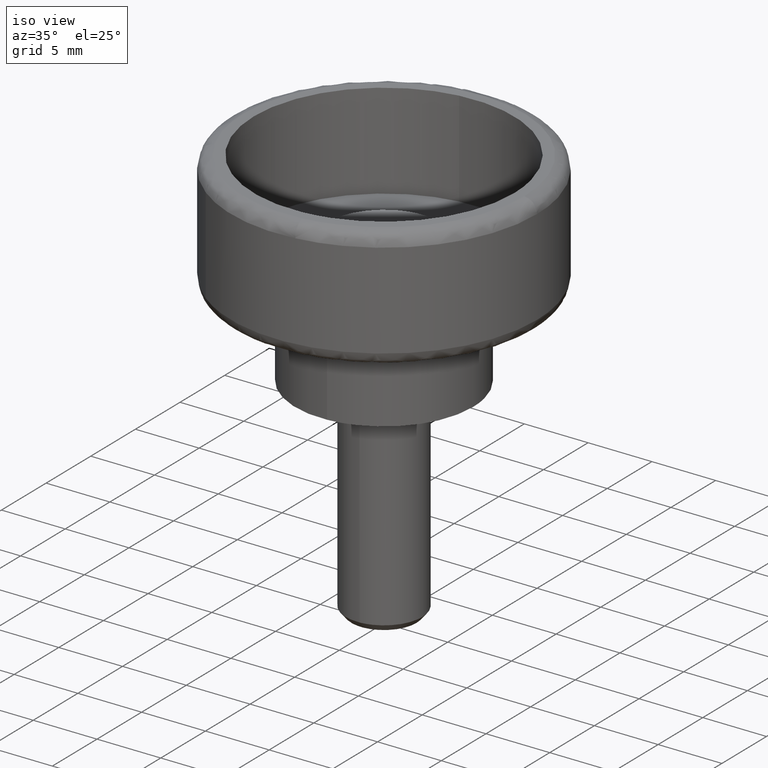
[diagram: clean part render]
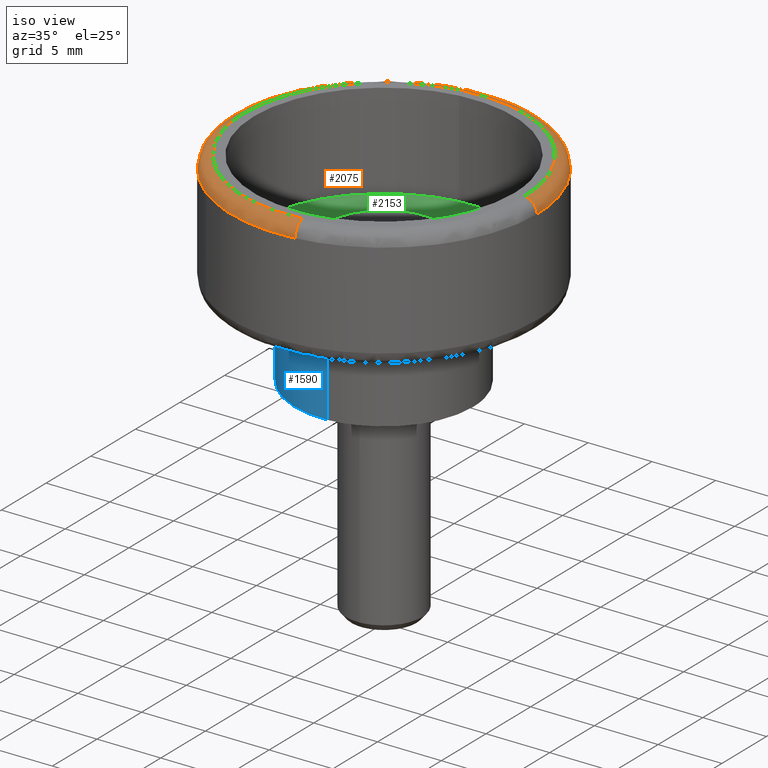
[diagram: same view with three faces highlighted in distinct colors, each labeled with its STEP entity id]
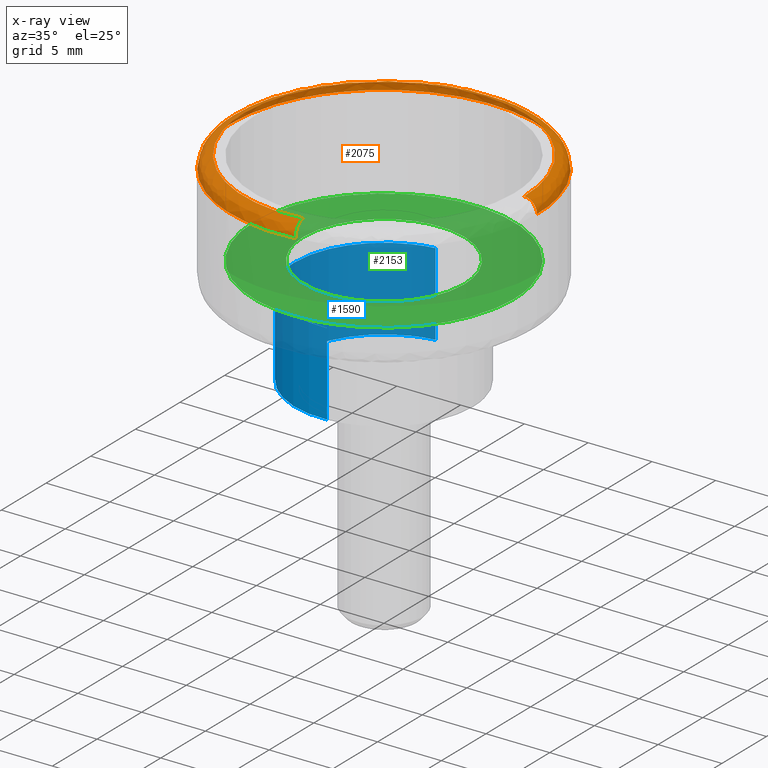
[diagram: x-ray of the same camera — body ghosted, the three highlighted faces saturated]
A machine part, iso view with three faces highlighted in distinct colors.
The next image is the same camera in x-ray (body ghosted, the three faces saturated) — at least one of them is partly hidden behind the body in this view.
Their STEP definitions:

[orange] entity #2075 — the highlighted face is a freeform B-spline surface patch.
#1630=CARTESIAN_POINT('',(-9.086860358384573,7.837663480095175,15.500000000000000));
#1631=VERTEX_POINT('',#1630);
#1637=CARTESIAN_POINT('',(12.0,9.606894E-018,15.500000000126580));
#1638=VERTEX_POINT('',#1637);
#1639=CARTESIAN_POINT('',(-9.086860358384573,7.837663480095175,15.499999999999998));
#1640=CARTESIAN_POINT('',(-5.496732234117525,12.000000000000004,15.500000000000000));
#1641=CARTESIAN_POINT('',(0.0,12.0,15.500000000000000));
#1642=CARTESIAN_POINT('',(12.0,12.0,15.500000000000004));
#1643=CARTESIAN_POINT('',(12.0,9.606894E-018,15.500000000126580));
#1651=(BOUNDED_CURVE()B_SPLINE_CURVE(2,(#1639,#1640,#1641,#1642,#1643),.UNSPECIFIED.,.F.,.U.)B_SPLINE_CURVE_WITH_KNOTS((3,2,3),(0.113878078103211,0.250000000000000,0.500000000000000),.UNSPECIFIED.)CURVE()GEOMETRIC_REPRESENTATION_ITEM()RATIONAL_B_SPLINE_CURVE((0.854712752367630,0.840523248578304,1.0,0.707106781186548,1.0))REPRESENTATION_ITEM(''));
#1652=EDGE_CURVE('',#1631,#1638,#1651,.T.);
#1654=CARTESIAN_POINT('',(1.385570751932019,-11.919739665420151,15.500000000125951));
#1655=VERTEX_POINT('',#1654);
#1669=CARTESIAN_POINT('',(-7.305136842351880,-9.520240318107154,15.500000000000000));
#1670=VERTEX_POINT('',#1669);
#1671=CARTESIAN_POINT('',(1.385570751932019,-11.919739665420147,15.500000000125949));
#1672=CARTESIAN_POINT('',(0.695109949181728,-12.000000000000002,15.499999999999996));
#1673=CARTESIAN_POINT('',(0.0,-12.0,15.500000000000000));
#1674=CARTESIAN_POINT('',(-4.073450676559038,-12.000000000000005,15.499999999999996));
#1675=CARTESIAN_POINT('',(-7.305136842351880,-9.520240318107154,15.500000000000002));
#1683=(BOUNDED_CURVE()B_SPLINE_CURVE(2,(#1671,#1672,#1673,#1674,#1675),.UNSPECIFIED.,.F.,.U.)B_SPLINE_CURVE_WITH_KNOTS((3,2,3),(0.729999999999798,0.750000000000000,0.855220500659799),.UNSPECIFIED.)CURVE()GEOMETRIC_REPRESENTATION_ITEM()RATIONAL_B_SPLINE_CURVE((0.956886118190261,0.976568542494687,1.0,0.876726515506354,0.857220213064703))REPRESENTATION_ITEM(''));
#1684=EDGE_CURVE('',#1655,#1670,#1683,.T.);
#1790=CARTESIAN_POINT('',(-12.0,0.0,15.500000000000000));
#1791=VERTEX_POINT('',#1790);
#1792=CARTESIAN_POINT('',(-7.305136842351879,-9.520240318107154,15.500000000000000));
#1793=CARTESIAN_POINT('',(-12.0,-5.917745591493209,15.499999999999996));
#1794=CARTESIAN_POINT('',(-12.0,0.0,15.500000000000000));
#1802=(BOUNDED_CURVE()B_SPLINE_CURVE(2,(#1792,#1793,#1794),.UNSPECIFIED.,.F.,.U.)B_SPLINE_CURVE_WITH_KNOTS((3,3),(0.855220500659800,1.0),.UNSPECIFIED.)CURVE()GEOMETRIC_REPRESENTATION_ITEM()RATIONAL_B_SPLINE_CURVE((0.857220213064703,0.830380265680195,1.0))REPRESENTATION_ITEM(''));
#1803=EDGE_CURVE('',#1670,#1791,#1802,.T.);
#1805=CARTESIAN_POINT('',(-12.0,0.0,15.500000000000000));
#1806=CARTESIAN_POINT('',(-12.000000000000007,4.460216464787531,15.500000000000004));
#1807=CARTESIAN_POINT('',(-9.086860358384573,7.837663480095175,15.499999999999998));
#1815=(BOUNDED_CURVE()B_SPLINE_CURVE(2,(#1805,#1806,#1807),.UNSPECIFIED.,.F.,.U.)B_SPLINE_CURVE_WITH_KNOTS((3,3),(0.0,0.113878078103211),.UNSPECIFIED.)CURVE()GEOMETRIC_REPRESENTATION_ITEM()RATIONAL_B_SPLINE_CURVE((1.0,0.866583532608244,0.854712752367630))REPRESENTATION_ITEM(''));
#1816=EDGE_CURVE('',#1791,#1631,#1815,.T.);
#1972=CARTESIAN_POINT('',(1.262097760555878,-10.857541202690685,16.497592334182070));
#1973=CARTESIAN_POINT('',(0.633166298613326,-10.930649190479311,16.497592334182073));
#1974=CARTESIAN_POINT('',(1.338574E-015,-10.930649190479308,16.497592334182070));
#1975=CARTESIAN_POINT('',(-10.930649190479309,-10.930649190479311,16.497592334182070));
#1976=CARTESIAN_POINT('',(-10.930649190479308,-2.007861E-015,16.497592334182070));
#1977=CARTESIAN_POINT('',(-10.930649190479315,10.930649190479309,16.497592334182070));
#1978=CARTESIAN_POINT('',(-2.677148E-015,10.930649190479308,16.497592334182070));
#1979=CARTESIAN_POINT('',(10.930649190479309,10.930649190479315,16.497592334182070));
#1980=CARTESIAN_POINT('',(10.930649190479308,3.346436E-015,16.497592334182070));
#1981=CARTESIAN_POINT('',(1.394545507994647,-11.996959178035647,16.577335958139578));
#1982=CARTESIAN_POINT('',(0.699612379595628,-12.077739303914532,16.577335958139578));
#1983=CARTESIAN_POINT('',(1.479048E-015,-12.077739303914530,16.577335958139575));
#1984=CARTESIAN_POINT('',(-12.077739303914527,-12.077739303914532,16.577335958139582));
#1985=CARTESIAN_POINT('',(-12.077739303914530,-2.218571E-015,16.577335958139575));
#1986=CARTESIAN_POINT('',(-12.077739303914532,12.077739303914527,16.577335958139582));
#1987=CARTESIAN_POINT('',(-2.958095E-015,12.077739303914530,16.577335958139575));
#1988=CARTESIAN_POINT('',(12.077739303914527,12.077739303914532,16.577335958139582));
#1989=CARTESIAN_POINT('',(12.077739303914530,3.697619E-015,16.577335958139575));
#1990=CARTESIAN_POINT('',(1.385288403415984,-11.917322403831911,15.430275774839700));
#1991=CARTESIAN_POINT('',(0.694968296684518,-11.997566304776679,15.430275774839703));
#1992=CARTESIAN_POINT('',(1.469230E-015,-11.997566304776678,15.430275774839700));
#1993=CARTESIAN_POINT('',(-11.997566304776672,-11.997566304776676,15.430275774839705));
#1994=CARTESIAN_POINT('',(-11.997566304776678,-2.203844E-015,15.430275774839700));
#1995=CARTESIAN_POINT('',(-11.997566304776676,11.997566304776671,15.430275774839705));
#1996=CARTESIAN_POINT('',(-2.938459E-015,11.997566304776678,15.430275774839700));
#1997=CARTESIAN_POINT('',(11.997566304776671,11.997566304776678,15.430275774839705));
#1998=CARTESIAN_POINT('',(11.997566304776678,3.673074E-015,15.430275774839700));
#2006=(BOUNDED_SURFACE()B_SPLINE_SURFACE(2,2,((#1972,#1981,#1990),(#1973,#1982,#1991),(#1974,#1983,#1992),(#1975,#1984,#1993),(#1976,#1985,#1994),(#1977,#1986,#1995),(#1978,#1987,#1996),(#1979,#1988,#1997),(#1980,#1989,#1998)),.UNSPECIFIED.,.F.,.F.,.U.)B_SPLINE_SURFACE_WITH_KNOTS((3,2,2,2,3),(3,3),(0.0,1.590255980663134,21.468474696298959,41.346693411934787,61.224912127570612),(0.0,1.822370659225236),.UNSPECIFIED.)GEOMETRIC_REPRESENTATION_ITEM()RATIONAL_B_SPLINE_SURFACE(((0.876475874065725,0.573569883320356,0.871620861004611),(0.894504305791055,0.585367772785560,0.889549428861364),(0.915966720612989,0.599412876740432,0.910892958147065),(0.647686279486648,0.423848909873695,0.644098587640864),(0.915966720612989,0.599412876740432,0.910892958147065),(0.647686279486648,0.423848909873695,0.644098587640864),(0.915966720612989,0.599412876740432,0.910892958147065),(0.647686279486648,0.423848909873695,0.644098587640864),(0.915966720612989,0.599412876740432,0.910892958147065)))REPRESENTATION_ITEM('')SURFACE());
#2007=ORIENTED_EDGE('',*,*,#1803,.F.);
#2008=ORIENTED_EDGE('',*,*,#1684,.F.);
#2009=CARTESIAN_POINT('',(1.270106522710412,-10.926428027348861,16.500000000000000));
#2010=VERTEX_POINT('',#2009);
#2011=CARTESIAN_POINT('',(1.270106522710412,-10.926428027348855,16.500000000000004));
#2012=CARTESIAN_POINT('',(1.385570751895803,-11.919739665170766,16.499999998557623));
#2013=CARTESIAN_POINT('',(1.385570751932018,-11.919739665420147,15.500000000125951));
#2021=(BOUNDED_CURVE()B_SPLINE_CURVE(2,(#2011,#2012,#2013),.UNSPECIFIED.,.F.,.U.)B_SPLINE_CURVE_WITH_KNOTS((3,3),(-1.736413119579362,-0.276558718274582),.UNSPECIFIED.)CURVE()GEOMETRIC_REPRESENTATION_ITEM()RATIONAL_B_SPLINE_CURVE((0.850203275787383,0.599621899510506,0.845789311810019))REPRESENTATION_ITEM(''));
#2022=EDGE_CURVE('',#2010,#1655,#2021,.T.);
#2023=ORIENTED_EDGE('',*,*,#2022,.F.);
#2024=CARTESIAN_POINT('',(-11.0,0.0,16.500000000000000));
#2025=VERTEX_POINT('',#2024);
#2026=CARTESIAN_POINT('',(1.270106522710412,-10.926428027348859,16.500000000000004));
#2027=CARTESIAN_POINT('',(0.637184120106272,-11.0,16.500000000000004));
#2028=CARTESIAN_POINT('',(0.0,-11.0,16.500000000000000));
#2029=CARTESIAN_POINT('',(-11.0,-11.0,16.499999999999993));
#2030=CARTESIAN_POINT('',(-11.0,0.0,16.500000000000000));
#2038=(BOUNDED_CURVE()B_SPLINE_CURVE(2,(#2026,#2027,#2028,#2029,#2030),.UNSPECIFIED.,.F.,.U.)B_SPLINE_CURVE_WITH_KNOTS((3,2,3),(0.729999999999092,0.750000000000000,1.0),.UNSPECIFIED.)CURVE()GEOMETRIC_REPRESENTATION_ITEM()RATIONAL_B_SPLINE_CURVE((0.956886118188873,0.976568542493860,1.0,0.707106781186548,1.0))REPRESENTATION_ITEM(''));
#2039=EDGE_CURVE('',#2010,#2025,#2038,.T.);
#2040=ORIENTED_EDGE('',*,*,#2039,.T.);
#2041=CARTESIAN_POINT('',(11.000000000028390,1.883752E-016,16.500000000000000));
#2042=VERTEX_POINT('',#2041);
#2043=CARTESIAN_POINT('',(-11.0,0.0,16.500000000000000));
#2044=CARTESIAN_POINT('',(-11.0,11.0,16.499999999999993));
#2045=CARTESIAN_POINT('',(0.0,11.0,16.500000000000000));
#2046=CARTESIAN_POINT('',(11.0,11.0,16.499999999999993));
#2047=CARTESIAN_POINT('',(11.000000000028390,1.883752E-016,16.500000000000000));
#2055=(BOUNDED_CURVE()B_SPLINE_CURVE(2,(#2043,#2044,#2045,#2046,#2047),.UNSPECIFIED.,.F.,.U.)B_SPLINE_CURVE_WITH_KNOTS((3,2,3),(0.0,0.250000000000000,0.500000000000000),.UNSPECIFIED.)CURVE()GEOMETRIC_REPRESENTATION_ITEM()RATIONAL_B_SPLINE_CURVE((1.0,0.707106781186548,1.0,0.707106781186548,1.0))REPRESENTATION_ITEM(''));
#2056=EDGE_CURVE('',#2025,#2042,#2055,.T.);
#2057=ORIENTED_EDGE('',*,*,#2056,.T.);
#2058=CARTESIAN_POINT('',(11.000000000028386,1.883752E-016,16.500000000000000));
#2059=CARTESIAN_POINT('',(11.999999999746843,1.701623E-016,16.499999999886455));
#2060=CARTESIAN_POINT('',(11.999999999999996,9.606894E-018,15.500000000126576));
#2068=(BOUNDED_CURVE()B_SPLINE_CURVE(2,(#2058,#2059,#2060),.UNSPECIFIED.,.F.,.U.)B_SPLINE_CURVE_WITH_KNOTS((3,3),(-1.736413120954656,-0.276558718275875),.UNSPECIFIED.)CURVE()GEOMETRIC_REPRESENTATION_ITEM()RATIONAL_B_SPLINE_CURVE((0.888510409020390,0.626638727305003,0.883897567046802))REPRESENTATION_ITEM(''));
#2069=EDGE_CURVE('',#2042,#1638,#2068,.T.);
#2070=ORIENTED_EDGE('',*,*,#2069,.T.);
#2071=ORIENTED_EDGE('',*,*,#1652,.F.);
#2072=ORIENTED_EDGE('',*,*,#1816,.F.);
#2073=EDGE_LOOP('',(#2007,#2008,#2023,#2040,#2057,#2070,#2071,#2072));
#2074=FACE_OUTER_BOUND('',#2073,.T.);
#2075=ADVANCED_FACE('',(#2074),#2006,.T.);

[blue] entity #1590 — the highlighted face is a freeform B-spline surface patch.
#1427=CARTESIAN_POINT('',(-0.826236553502768,6.951067051729984,0.499999999999943));
#1428=VERTEX_POINT('',#1427);
#1446=CARTESIAN_POINT('',(-0.826236591573565,6.951067047204727,7.0));
#1447=VERTEX_POINT('',#1446);
#1448=CARTESIAN_POINT('',(-0.826236591573565,6.951067047204727,7.0));
#1449=CARTESIAN_POINT('',(-0.826236553502768,6.951067051729984,0.499999999999943));
#1450=QUASI_UNIFORM_CURVE('',1,(#1448,#1449),.UNSPECIFIED.,.F.,.U.);
#1451=EDGE_CURVE('',#1447,#1428,#1450,.T.);
#1470=CARTESIAN_POINT('',(0.427335286150465,-6.986943863606637,7.0));
#1471=VERTEX_POINT('',#1470);
#1485=CARTESIAN_POINT('',(0.427335229989776,-6.986943867041500,0.499999999999905));
#1486=VERTEX_POINT('',#1485);
#1487=CARTESIAN_POINT('',(0.427335286150465,-6.986943863606637,7.0));
#1488=CARTESIAN_POINT('',(0.427335229989776,-6.986943867041500,0.499999999999905));
#1489=QUASI_UNIFORM_CURVE('',1,(#1487,#1488),.UNSPECIFIED.,.F.,.U.);
#1490=EDGE_CURVE('',#1471,#1486,#1489,.T.);
#1508=CARTESIAN_POINT('',(0.427339776743999,-6.986943588953067,7.162500000000003));
#1509=CARTESIAN_POINT('',(-6.559603812209068,-7.414283365697066,7.162500000000005));
#1510=CARTESIAN_POINT('',(-6.986943588953067,-0.427339776743999,7.162500000000003));
#1511=CARTESIAN_POINT('',(-7.390503377127691,6.170804435876506,7.162500000000002));
#1512=CARTESIAN_POINT('',(-0.826239642597309,6.951066684545665,7.162500000000005));
#1513=CARTESIAN_POINT('',(0.427339776743999,-6.986943588953067,0.333437499999927));
#1514=CARTESIAN_POINT('',(-6.559603812209068,-7.414283365697066,0.333437499999927));
#1515=CARTESIAN_POINT('',(-6.986943588953067,-0.427339776743999,0.333437499999927));
#1516=CARTESIAN_POINT('',(-7.390503377127691,6.170804435876506,0.333437499999927));
#1517=CARTESIAN_POINT('',(-0.826239642597309,6.951066684545665,0.333437499999927));
#1525=(BOUNDED_SURFACE()B_SPLINE_SURFACE(2,1,((#1508,#1513),(#1509,#1514),(#1510,#1515),(#1511,#1516),(#1512,#1517)),.UNSPECIFIED.,.F.,.F.,.U.)B_SPLINE_SURFACE_WITH_KNOTS((3,2,3),(2,2),(0.0,11.597979746446660,22.732040303035451),(0.0,6.829062500000078),.UNSPECIFIED.)GEOMETRIC_REPRESENTATION_ITEM()RATIONAL_B_SPLINE_SURFACE(((1.0,1.0),(0.707106781186548,0.707106781186548),(1.0,1.0),(0.718822509939086,0.718822509939086),(0.977505800795127,0.977505800795127)))REPRESENTATION_ITEM('')SURFACE());
#1526=CARTESIAN_POINT('',(-7.0,0.0,0.499999999999929));
#1527=VERTEX_POINT('',#1526);
#1528=CARTESIAN_POINT('',(-7.0,0.0,0.499999999999929));
#1529=CARTESIAN_POINT('',(-7.0,6.217224464079954,0.499999999999929));
#1530=CARTESIAN_POINT('',(-0.826236553502768,6.951067051729984,0.499999999999943));
#1538=(BOUNDED_CURVE()B_SPLINE_CURVE(2,(#1528,#1529,#1530),.UNSPECIFIED.,.F.,.U.)B_SPLINE_CURVE_WITH_KNOTS((3,3),(0.0,0.229562548621675),.UNSPECIFIED.)CURVE()GEOMETRIC_REPRESENTATION_ITEM()RATIONAL_B_SPLINE_CURVE((1.0,0.731050744860711,0.956026901398833))REPRESENTATION_ITEM(''));
#1539=EDGE_CURVE('',#1527,#1428,#1538,.T.);
#1540=ORIENTED_EDGE('',*,*,#1539,.F.);
#1541=CARTESIAN_POINT('',(0.427335229989776,-6.986943867041500,0.499999999999905));
#1542=CARTESIAN_POINT('',(0.213867063338795,-7.0,0.499999999999929));
#1543=CARTESIAN_POINT('',(0.0,-7.0,0.499999999999929));
#1544=CARTESIAN_POINT('',(-6.999999999999999,-6.999999999999999,0.499999999999929));
#1545=CARTESIAN_POINT('',(-7.0,0.0,0.499999999999929));
#1553=(BOUNDED_CURVE()B_SPLINE_CURVE(2,(#1541,#1542,#1543,#1544,#1545),.UNSPECIFIED.,.F.,.U.)B_SPLINE_CURVE_WITH_KNOTS((3,2,3),(0.739333074526818,0.750000000000000,1.0),.UNSPECIFIED.)CURVE()GEOMETRIC_REPRESENTATION_ITEM()RATIONAL_B_SPLINE_CURVE((0.976072282321127,0.987502919453266,1.0,0.707106781186547,1.0))REPRESENTATION_ITEM(''));
#1554=EDGE_CURVE('',#1486,#1527,#1553,.T.);
#1555=ORIENTED_EDGE('',*,*,#1554,.F.);
#1556=ORIENTED_EDGE('',*,*,#1490,.F.);
#1557=CARTESIAN_POINT('',(-7.0,0.0,7.0));
#1558=VERTEX_POINT('',#1557);
#1559=CARTESIAN_POINT('',(0.427335286150465,-6.986943863606637,7.0));
#1560=CARTESIAN_POINT('',(0.213867091497872,-7.0,7.0));
#1561=CARTESIAN_POINT('',(0.0,-7.0,7.0));
#1562=CARTESIAN_POINT('',(-6.999999999999999,-6.999999999999999,6.999999999999999));
#1563=CARTESIAN_POINT('',(-7.0,0.0,7.0));
#1571=(BOUNDED_CURVE()B_SPLINE_CURVE(2,(#1559,#1560,#1561,#1562,#1563),.UNSPECIFIED.,.F.,.U.)B_SPLINE_CURVE_WITH_KNOTS((3,2,3),(0.739333073139896,0.750000000000000,1.0),.UNSPECIFIED.)CURVE()GEOMETRIC_REPRESENTATION_ITEM()RATIONAL_B_SPLINE_CURVE((0.976072279348686,0.987502917828386,1.0,0.707106781186547,1.0))REPRESENTATION_ITEM(''));
#1572=EDGE_CURVE('',#1471,#1558,#1571,.T.);
#1573=ORIENTED_EDGE('',*,*,#1572,.T.);
#1574=CARTESIAN_POINT('',(-7.0,0.0,7.0));
#1575=CARTESIAN_POINT('',(-7.0,6.217224429788684,7.0));
#1576=CARTESIAN_POINT('',(-0.826236591573565,6.951067047204728,7.0));
#1584=(BOUNDED_CURVE()B_SPLINE_CURVE(2,(#1574,#1575,#1576),.UNSPECIFIED.,.F.,.U.)B_SPLINE_CURVE_WITH_KNOTS((3,3),(0.0,0.229562547696049),.UNSPECIFIED.)CURVE()GEOMETRIC_REPRESENTATION_ITEM()RATIONAL_B_SPLINE_CURVE((1.0,0.731050745945150,0.956026899584567))REPRESENTATION_ITEM(''));
#1585=EDGE_CURVE('',#1558,#1447,#1584,.T.);
#1586=ORIENTED_EDGE('',*,*,#1585,.T.);
#1587=ORIENTED_EDGE('',*,*,#1451,.T.);
#1588=EDGE_LOOP('',(#1540,#1555,#1556,#1573,#1586,#1587));
#1589=FACE_OUTER_BOUND('',#1588,.T.);
#1590=ADVANCED_FACE('',(#1589),#1525,.T.);

[green] entity #2153 — the highlighted face is a freeform B-spline surface patch.
#899=CARTESIAN_POINT('',(0.384605799139693,-6.288249230063156,8.999999999991946));
#900=VERTEX_POINT('',#899);
#906=CARTESIAN_POINT('',(6.300000000000000,0.0,9.0));
#907=VERTEX_POINT('',#906);
#908=CARTESIAN_POINT('',(6.300000000000000,0.0,9.0));
#909=CARTESIAN_POINT('',(6.299999999999998,-5.926448221374642,9.0));
#910=CARTESIAN_POINT('',(0.384605799139693,-6.288249230063156,8.999999999991946));
#918=(BOUNDED_CURVE()B_SPLINE_CURVE(2,(#908,#909,#910),.UNSPECIFIED.,.F.,.U.)B_SPLINE_CURVE_WITH_KNOTS((3,3),(0.500000000000000,0.739332962238155),.UNSPECIFIED.)CURVE()GEOMETRIC_REPRESENTATION_ITEM()RATIONAL_B_SPLINE_CURVE((1.0,0.719603993287634,0.976072041665028))REPRESENTATION_ITEM(''));
#919=EDGE_CURVE('',#907,#900,#918,.T.);
#921=CARTESIAN_POINT('',(-0.743615678392940,6.255960016091840,8.999999999993939));
#922=VERTEX_POINT('',#921);
#923=CARTESIAN_POINT('',(-0.743615678392940,6.255960016091840,8.999999999993939));
#924=CARTESIAN_POINT('',(-0.373111953862113,6.300000000000001,9.0));
#925=CARTESIAN_POINT('',(0.0,6.300000000000000,9.0));
#926=CARTESIAN_POINT('',(6.299999999999998,6.299999999999998,9.000000000000002));
#927=CARTESIAN_POINT('',(6.300000000000000,0.0,9.0));
#935=(BOUNDED_CURVE()B_SPLINE_CURVE(2,(#923,#924,#925,#926,#927),.UNSPECIFIED.,.F.,.U.)B_SPLINE_CURVE_WITH_KNOTS((3,2,3),(0.229562473512699,0.250000000000000,0.500000000000000),.UNSPECIFIED.)CURVE()GEOMETRIC_REPRESENTATION_ITEM()RATIONAL_B_SPLINE_CURVE((0.956026754182114,0.976055948330197,1.0,0.707106781186548,1.0))REPRESENTATION_ITEM(''));
#936=EDGE_CURVE('',#922,#907,#935,.T.);
#980=CARTESIAN_POINT('',(-6.300000000000000,0.0,9.0));
#981=VERTEX_POINT('',#980);
#982=CARTESIAN_POINT('',(-6.300000000000000,0.0,9.0));
#983=CARTESIAN_POINT('',(-6.299999999999998,5.595499513395430,9.0));
#984=CARTESIAN_POINT('',(-0.743615678392940,6.255960016091840,8.999999999993939));
#992=(BOUNDED_CURVE()B_SPLINE_CURVE(2,(#982,#983,#984),.UNSPECIFIED.,.F.,.U.)B_SPLINE_CURVE_WITH_KNOTS((3,3),(0.0,0.229562473512699),.UNSPECIFIED.)CURVE()GEOMETRIC_REPRESENTATION_ITEM()RATIONAL_B_SPLINE_CURVE((1.0,0.731050832856350,0.956026754182114))REPRESENTATION_ITEM(''));
#993=EDGE_CURVE('',#981,#922,#992,.T.);
#995=CARTESIAN_POINT('',(0.384605799139693,-6.288249230063156,8.999999999991946));
#996=CARTESIAN_POINT('',(0.192482408850810,-6.300000000000000,9.000000000000002));
#997=CARTESIAN_POINT('',(0.0,-6.300000000000000,9.0));
#998=CARTESIAN_POINT('',(-6.299999999999998,-6.299999999999998,9.000000000000002));
#999=CARTESIAN_POINT('',(-6.300000000000000,0.0,9.0));
#1007=(BOUNDED_CURVE()B_SPLINE_CURVE(2,(#995,#996,#997,#998,#999),.UNSPECIFIED.,.F.,.U.)B_SPLINE_CURVE_WITH_KNOTS((3,2,3),(0.739332962238154,0.750000000000000,1.0),.UNSPECIFIED.)CURVE()GEOMETRIC_REPRESENTATION_ITEM()RATIONAL_B_SPLINE_CURVE((0.976072041665027,0.987502787898913,1.0,0.707106781186548,1.0))REPRESENTATION_ITEM(''));
#1008=EDGE_CURVE('',#900,#981,#1007,.T.);
#1051=CARTESIAN_POINT('',(-1.203941008824825,10.128698141775279,9.000000000000032));
#1052=VERTEX_POINT('',#1051);
#1053=CARTESIAN_POINT('',(10.199999999999999,0.0,9.0));
#1054=VERTEX_POINT('',#1053);
#1055=CARTESIAN_POINT('',(-1.203941008824825,10.128698141775276,9.000000000000032));
#1056=CARTESIAN_POINT('',(-0.604081884849259,10.199999999999999,9.0));
#1057=CARTESIAN_POINT('',(0.0,10.199999999999999,9.0));
#1058=CARTESIAN_POINT('',(10.200000000000001,10.200000000000001,9.000000000000002));
#1059=CARTESIAN_POINT('',(10.199999999999999,0.0,9.0));
#1067=(BOUNDED_CURVE()B_SPLINE_CURVE(2,(#1055,#1056,#1057,#1058,#1059),.UNSPECIFIED.,.F.,.U.)B_SPLINE_CURVE_WITH_KNOTS((3,2,3),(0.229562610081736,0.250000000000000,0.500000000000000),.UNSPECIFIED.)CURVE()GEOMETRIC_REPRESENTATION_ITEM()RATIONAL_B_SPLINE_CURVE((0.956027021863189,0.976056108330776,1.0,0.707106781186548,1.0))REPRESENTATION_ITEM(''));
#1068=EDGE_CURVE('',#1052,#1054,#1067,.T.);
#1070=CARTESIAN_POINT('',(0.622684994504387,-10.180975562170680,8.999999999999988));
#1071=VERTEX_POINT('',#1070);
#1072=CARTESIAN_POINT('',(10.199999999999999,0.0,9.0));
#1073=CARTESIAN_POINT('',(10.200000000000001,-9.595211427378761,9.0));
#1074=CARTESIAN_POINT('',(0.622684994504387,-10.180975562170676,8.999999999999988));
#1082=(BOUNDED_CURVE()B_SPLINE_CURVE(2,(#1072,#1073,#1074),.UNSPECIFIED.,.F.,.U.)B_SPLINE_CURVE_WITH_KNOTS((3,3),(0.500000000000000,0.739333133564734),.UNSPECIFIED.)CURVE()GEOMETRIC_REPRESENTATION_ITEM()RATIONAL_B_SPLINE_CURVE((1.0,0.719603792566061,0.976072408850776))REPRESENTATION_ITEM(''));
#1083=EDGE_CURVE('',#1054,#1071,#1082,.T.);
#1150=CARTESIAN_POINT('',(-10.199999999999999,0.0,9.0));
#1151=VERTEX_POINT('',#1150);
#1152=CARTESIAN_POINT('',(-10.199999999999999,0.0,9.0));
#1153=CARTESIAN_POINT('',(-10.200000000000001,9.059387536834020,9.0));
#1154=CARTESIAN_POINT('',(-1.203941008824825,10.128698141775276,9.000000000000032));
#1162=(BOUNDED_CURVE()B_SPLINE_CURVE(2,(#1152,#1153,#1154),.UNSPECIFIED.,.F.,.U.)B_SPLINE_CURVE_WITH_KNOTS((3,3),(0.0,0.229562610081736),.UNSPECIFIED.)CURVE()GEOMETRIC_REPRESENTATION_ITEM()RATIONAL_B_SPLINE_CURVE((1.0,0.731050672855771,0.956027021863189))REPRESENTATION_ITEM(''));
#1163=EDGE_CURVE('',#1151,#1052,#1162,.T.);
#1197=CARTESIAN_POINT('',(0.622684994504387,-10.180975562170676,8.999999999999988));
#1198=CARTESIAN_POINT('',(0.311633117098438,-10.200000000000005,8.999999999999998));
#1199=CARTESIAN_POINT('',(0.0,-10.199999999999999,9.0));
#1200=CARTESIAN_POINT('',(-10.200000000000001,-10.200000000000001,9.000000000000002));
#1201=CARTESIAN_POINT('',(-10.199999999999999,0.0,9.0));
#1209=(BOUNDED_CURVE()B_SPLINE_CURVE(2,(#1197,#1198,#1199,#1200,#1201),.UNSPECIFIED.,.F.,.U.)B_SPLINE_CURVE_WITH_KNOTS((3,2,3),(0.739333133564734,0.750000000000000,1.0),.UNSPECIFIED.)CURVE()GEOMETRIC_REPRESENTATION_ITEM()RATIONAL_B_SPLINE_CURVE((0.976072408850776,0.987502988620487,1.0,0.707106781186548,1.0))REPRESENTATION_ITEM(''));
#1210=EDGE_CURVE('',#1071,#1151,#1209,.T.);
#2136=CARTESIAN_POINT('',(-11.218979768960240,-11.218732276028920,9.0));
#2137=CARTESIAN_POINT('',(11.218980498521089,-11.218732276028920,9.0));
#2138=CARTESIAN_POINT('',(-11.218979768960240,11.218794471091559,9.0));
#2139=CARTESIAN_POINT('',(11.218980498521089,11.218794471091559,9.0));
#2140=B_SPLINE_SURFACE_WITH_KNOTS('',1,1,((#2136,#2138),(#2137,#2139)),.UNSPECIFIED.,.F.,.F.,.U.,(2,2),(2,2),(0.0,22.437960267481319),(0.0,22.437526747120490),.UNSPECIFIED.);
#2141=ORIENTED_EDGE('',*,*,#1210,.F.);
#2142=ORIENTED_EDGE('',*,*,#1083,.F.);
#2143=ORIENTED_EDGE('',*,*,#1068,.F.);
#2144=ORIENTED_EDGE('',*,*,#1163,.F.);
#2145=EDGE_LOOP('',(#2141,#2142,#2143,#2144));
#2146=FACE_OUTER_BOUND('',#2145,.T.);
#2147=ORIENTED_EDGE('',*,*,#919,.T.);
#2148=ORIENTED_EDGE('',*,*,#1008,.T.);
#2149=ORIENTED_EDGE('',*,*,#993,.T.);
#2150=ORIENTED_EDGE('',*,*,#936,.T.);
#2151=EDGE_LOOP('',(#2147,#2148,#2149,#2150));
#2152=FACE_BOUND('',#2151,.T.);
#2153=ADVANCED_FACE('',(#2146,#2152),#2140,.T.);